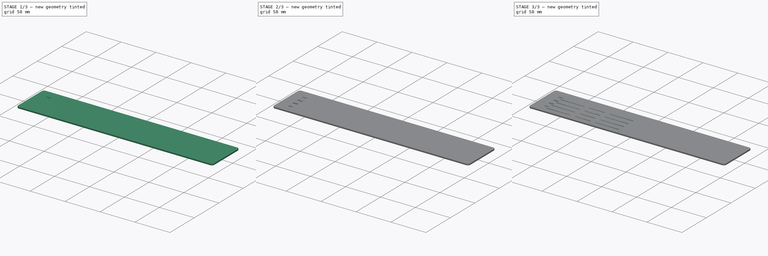
[diagram: build sequence overview — one tinted view per stage of 3, left to right]
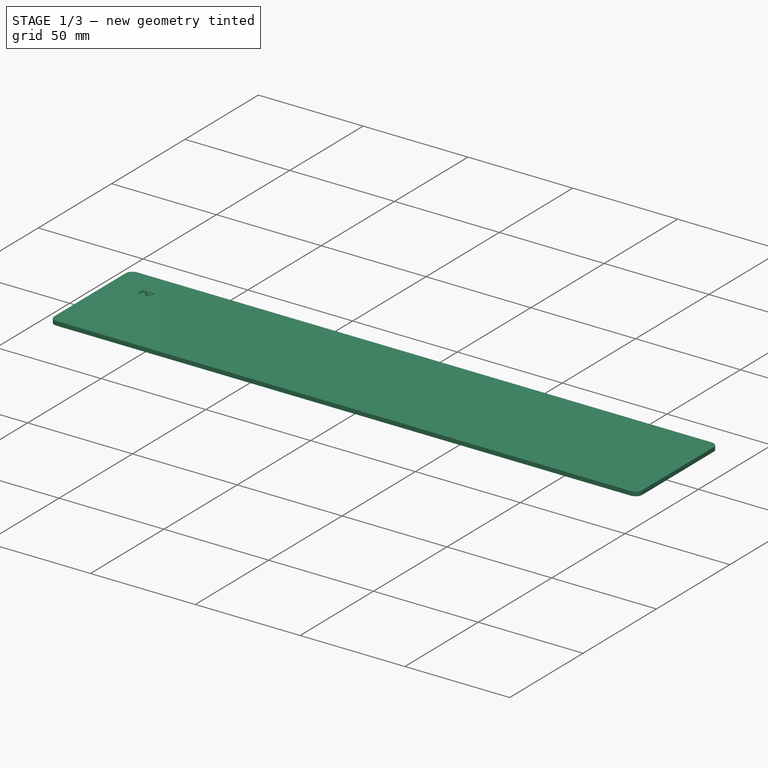
[diagram: stage 1 of 3 — iso view after this stage's code; geometry added in this stage tinted green]
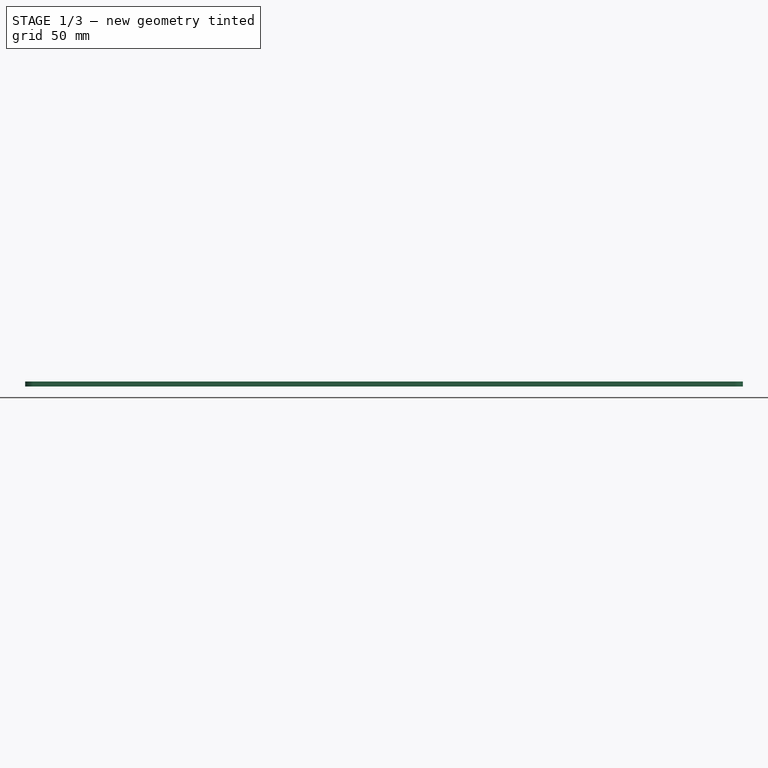
[diagram: stage 1 of 3 — front view after this stage's code; geometry added in this stage tinted green]
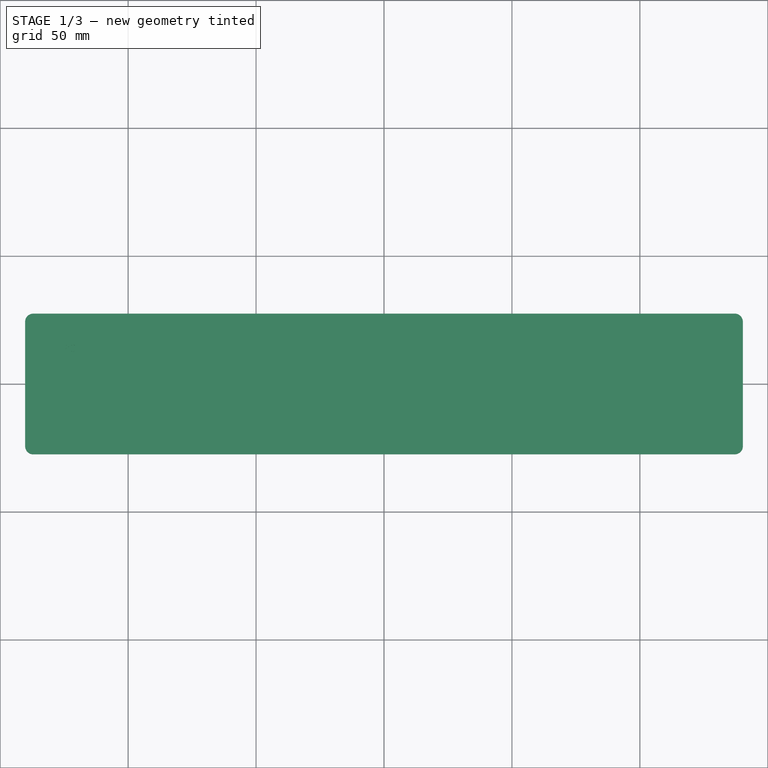
[diagram: stage 1 of 3 — top view after this stage's code; geometry added in this stage tinted green]
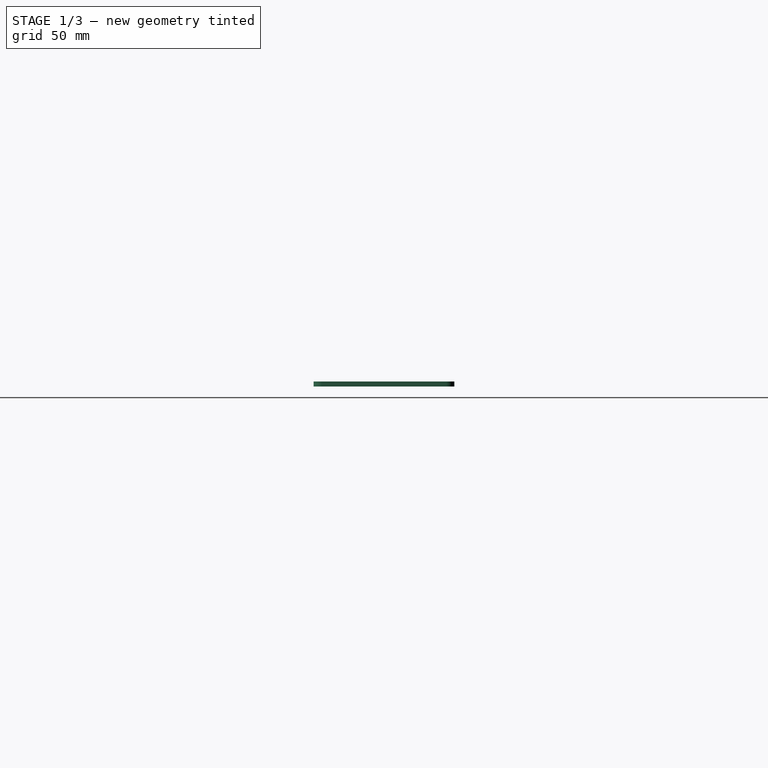
[diagram: stage 1 of 3 — right view after this stage's code; geometry added in this stage tinted green]
FCSTD DOCUMENT  (FreeCAD 0.21R33771 (Git))
Label: perspex window
License: All rights reserved
LicenseURL: http://en.wikipedia.org/wiki/All_rights_reserved
objects: Part::Part2DObjectPython×14, PartDesign::Pocket×5, Sketcher::SketchObject×2, PartDesign::Pad×1, PartDesign::LinearPattern×1, PartDesign::Body×1
note: 30 computed .brp shape members not serialized (recipe doc carries the construction recipe); baked Part::Feature solids carry a one-line shape summary decoded from their .brp

FEATURE [Sketcher::SketchObject] Sketch
  FullyConstrained = true
  MapMode = 5
  Support = -> [XY_Plane]
  sketch-geometry (10):
    g0: ArcOfCircle CenterX=-137.05 CenterY=24.3 CenterZ=0 NormalX=0 NormalY=0 NormalZ=1 AngleXU=0 Radius=3.2 StartAngle=1.5708 EndAngle=3.14159
    g1: LineSegment StartX=-137.05 StartY=27.5 StartZ=0 EndX=137.05 EndY=27.5 EndZ=0
    g2: ArcOfCircle CenterX=137.05 CenterY=24.3 CenterZ=0 NormalX=0 NormalY=0 NormalZ=1 AngleXU=0 Radius=3.2 StartAngle=5e-16 EndAngle=1.5708
    g3: LineSegment StartX=140.25 StartY=24.3 StartZ=0 EndX=140.25 EndY=-24.3 EndZ=0
    g4: ArcOfCircle CenterX=137.05 CenterY=-24.3 CenterZ=0 NormalX=0 NormalY=0 NormalZ=1 AngleXU=0 Radius=3.2 StartAngle=4.71239 EndAngle=6.28319
    g5: LineSegment StartX=137.05 StartY=-27.5 StartZ=0 EndX=-137.05 EndY=-27.5 EndZ=0
    g6: ArcOfCircle CenterX=-137.05 CenterY=-24.3 CenterZ=0 NormalX=0 NormalY=0 NormalZ=1 AngleXU=0 Radius=3.2 StartAngle=3.14159 EndAngle=4.71239
    g7: LineSegment StartX=-140.25 StartY=-24.3 StartZ=0 EndX=-140.25 EndY=24.3 EndZ=0
    g8: GeomPoint X=-140.25 Y=27.5 Z=0
    g9: GeomPoint X=140.25 Y=-27.5 Z=0
  constraints (23):
    c: Tangent(g0,g1) = 1.5708
    c: Tangent(g1,g2) = 1.5708
    c: Tangent(g2,g3) = 1.5708
    c: Tangent(g3,g4) = 1.5708
    c: Tangent(g4,g5) = 1.5708
    c: Tangent(g5,g6) = 1.5708
    c: Tangent(g6,g7) = 1.5708
    c: Tangent(g7,g0) = 1.5708
    c: Horizontal(g1)
    c: Horizontal(g5)
    c: Vertical(g3)
    c: Vertical(g7)
    c: Equal(g0,g2)
    c: Equal(g2,g4)
    c: Equal(g4,g6)
    c: PointOnObject(g8,g1)
    c: PointOnObject(g8,g7)
    c: PointOnObject(g9,g3)
    c: PointOnObject(g9,g5)
    c: Radius(g0) = 3.2
    c: Symmetric(g2,g6,g-1)
    c: DistanceX(g0,g2) = 280.5
    c: DistanceY(g4,g1) = 55
FEATURE [PartDesign::Pad] Pad
  Direction = (0,0,1)
  Length = 2
  Length2 = 10
  Profile = -> Sketch
  ReferenceAxis = -> Sketch [N_Axis]
  Type = 0
FEATURE [Part::Part2DObjectPython] ShapeString  # Draft 2D object (typed FeaturePython)
  FontFile = <userpath>/Downloads/roboto/Roboto-Black.ttf
  MakeFace = true
  Placement = pos=(-126,12,2) rot=(0,0,1;0rad)
  Size = 4
  String = PC
  Tracking = 0
FEATURE [PartDesign::Pocket] Pocket  label="PC"
  BaseFeature = -> Pad
  Direction = (0,0,-1)
  Length = 1
  Length2 = 5
  Profile = -> ShapeString
  ReferenceAxis = -> ShapeString [N_Axis]
  Type = 0
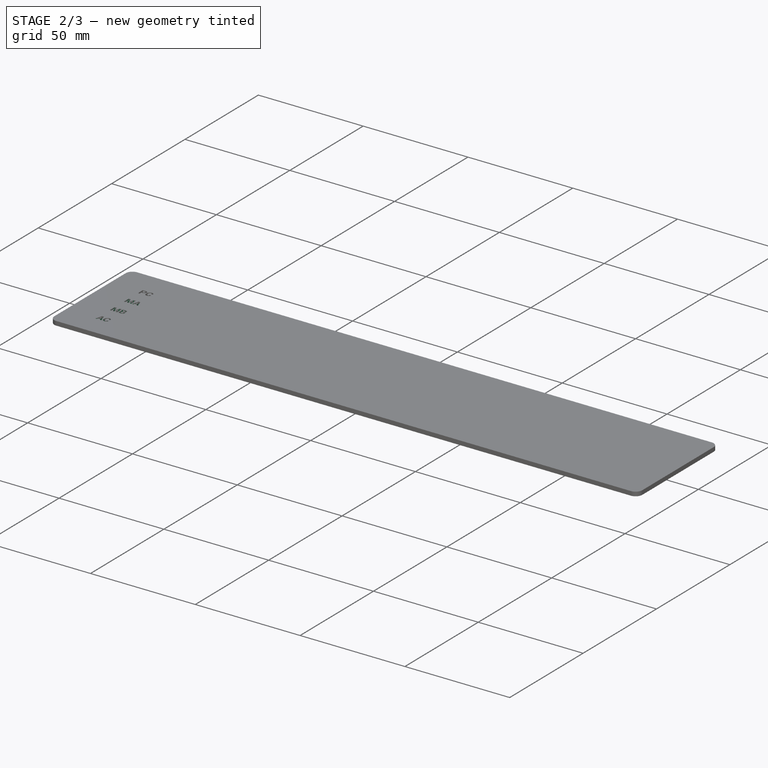
[diagram: stage 2 of 3 — iso view after this stage's code; geometry added in this stage tinted green]
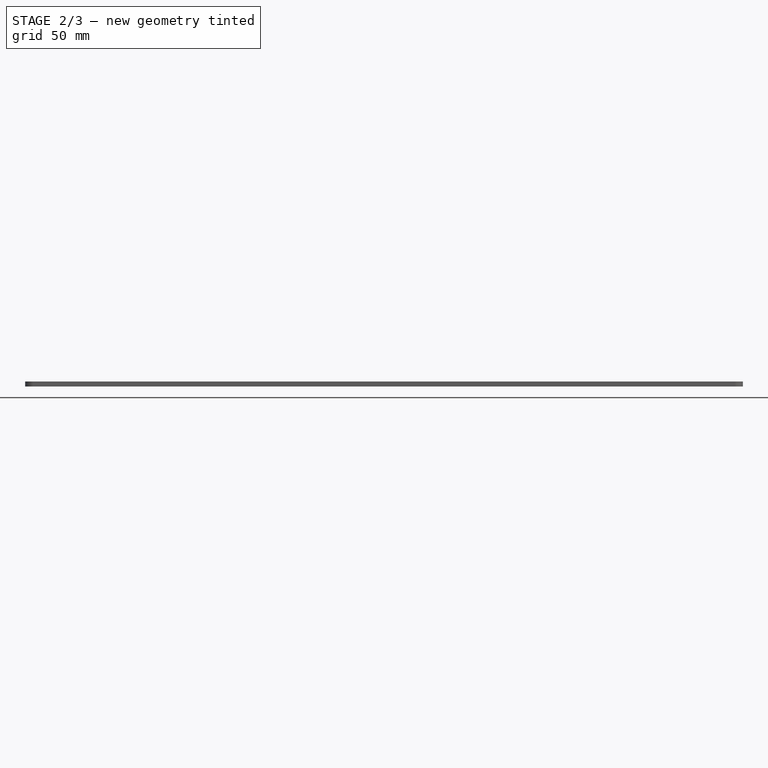
[diagram: stage 2 of 3 — front view after this stage's code; geometry added in this stage tinted green]
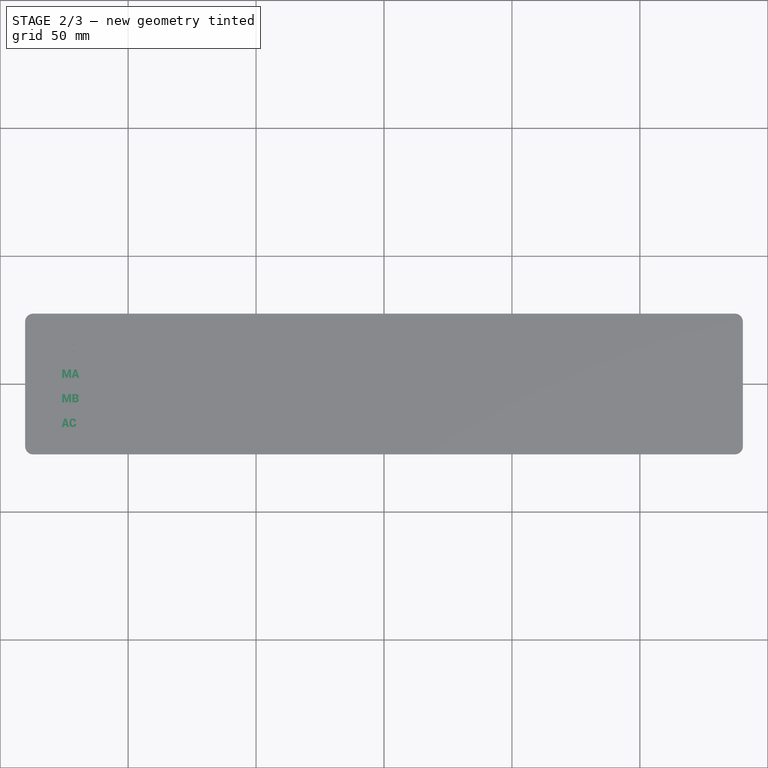
[diagram: stage 2 of 3 — top view after this stage's code; geometry added in this stage tinted green]
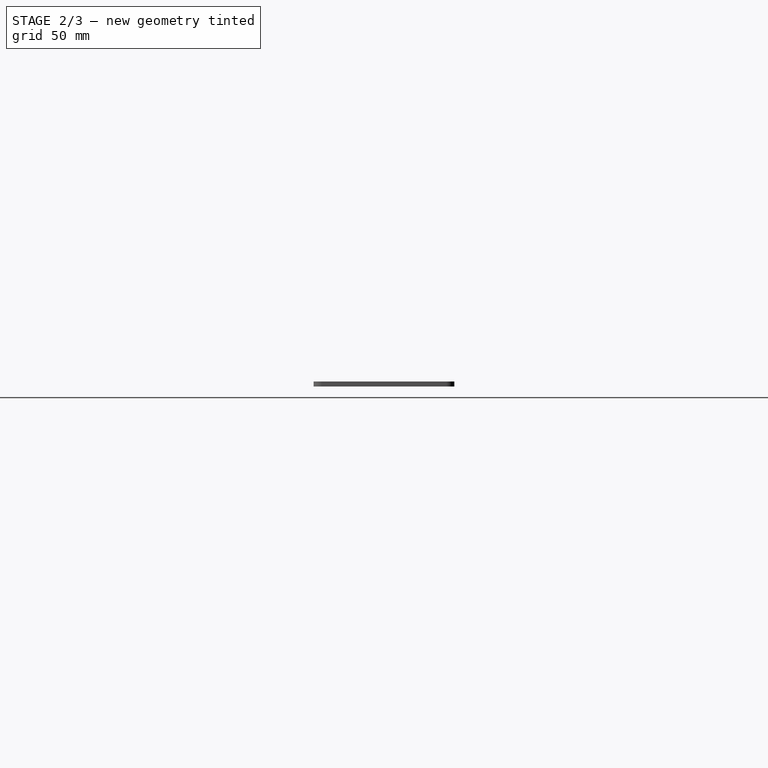
[diagram: stage 2 of 3 — right view after this stage's code; geometry added in this stage tinted green]
FEATURE [Part::Part2DObjectPython] ShapeString001  # Draft 2D object (typed FeaturePython)
  FontFile = <userpath>/Downloads/roboto/Roboto-Black.ttf
  MakeFace = true
  Placement = pos=(-126,2.4,2) rot=(0,0,1;0rad)
  Size = 4
  String = MA
  Tracking = 0
FEATURE [Part::Part2DObjectPython] ShapeString002  # Draft 2D object (typed FeaturePython)
  FontFile = <userpath>/Downloads/roboto/Roboto-Black.ttf
  MakeFace = true
  Placement = pos=(-126,-7.2,2) rot=(0,0,1;0rad)
  Size = 4
  String = MB
  Tracking = 0
FEATURE [Part::Part2DObjectPython] ShapeString003  # Draft 2D object (typed FeaturePython)
  FontFile = <userpath>/Downloads/roboto/Roboto-Black.ttf
  MakeFace = true
  Placement = pos=(-126,-16.8,2) rot=(0,0,1;0rad)
  Size = 4
  String = AC
  Tracking = 0
FEATURE [PartDesign::Pocket] Pocket001  label="MA"
  BaseFeature = -> Pocket
  Direction = (0,0,-1)
  Length = 1
  Length2 = 5
  Profile = -> ShapeString001
  ReferenceAxis = -> ShapeString001 [N_Axis]
  Type = 0
FEATURE [PartDesign::Pocket] Pocket002  label="MB"
  BaseFeature = -> Pocket001
  Direction = (0,0,-1)
  Length = 1
  Length2 = 5
  Profile = -> ShapeString002
  ReferenceAxis = -> ShapeString002 [N_Axis]
  Type = 0
FEATURE [PartDesign::Pocket] Pocket003  label="AC"
  BaseFeature = -> Pocket002
  Direction = (0,0,-1)
  Length = 1
  Length2 = 5
  Profile = -> ShapeString003
  ReferenceAxis = -> ShapeString003 [N_Axis]
  Type = 0
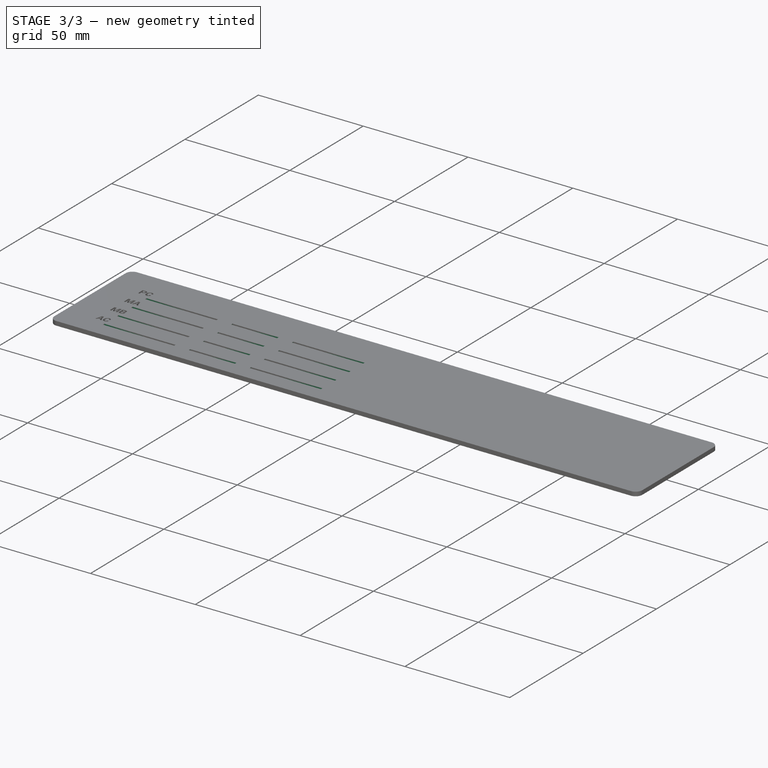
[diagram: stage 3 of 3 — iso view after this stage's code; geometry added in this stage tinted green]
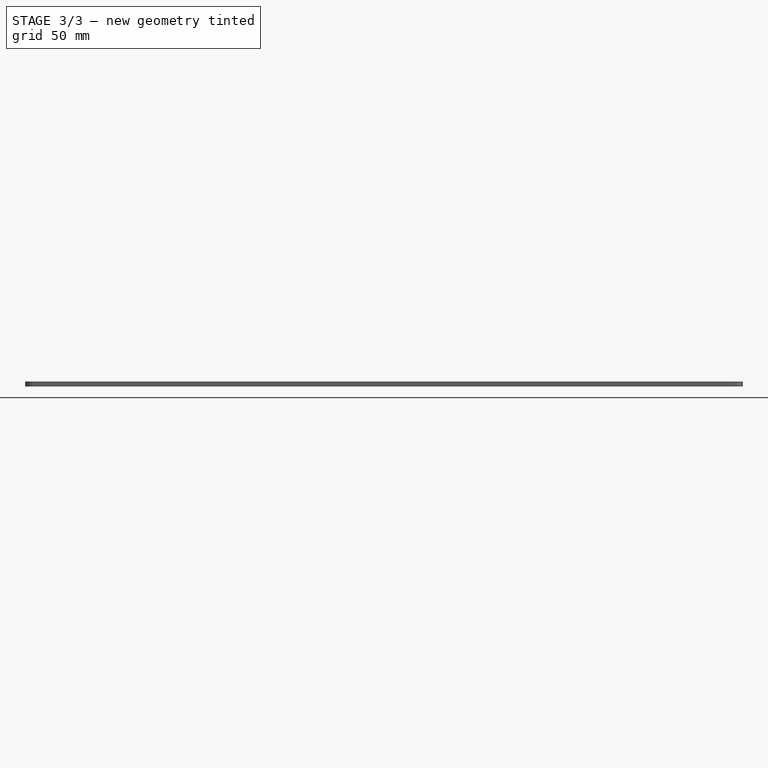
[diagram: stage 3 of 3 — front view after this stage's code; geometry added in this stage tinted green]
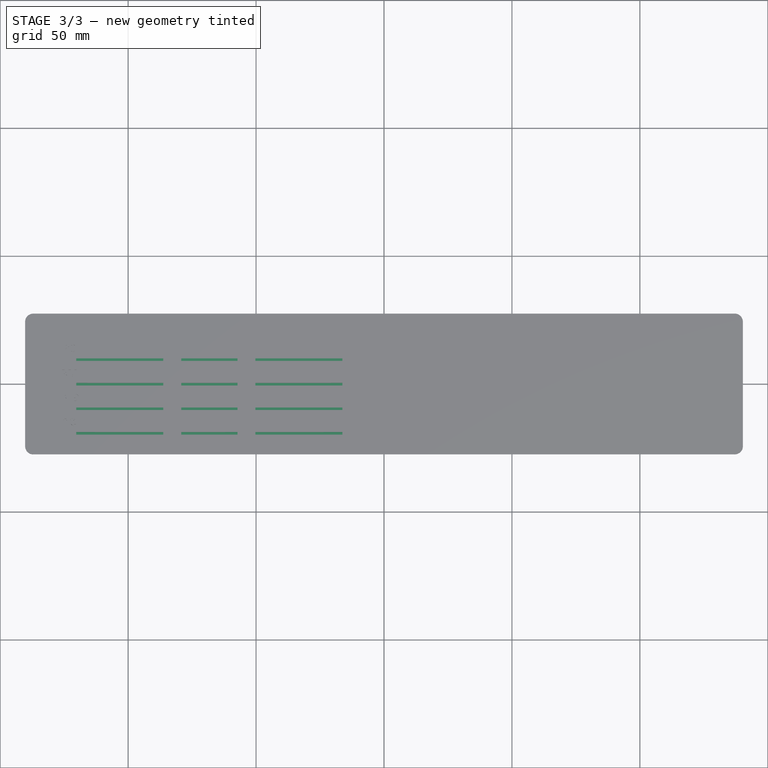
[diagram: stage 3 of 3 — top view after this stage's code; geometry added in this stage tinted green]
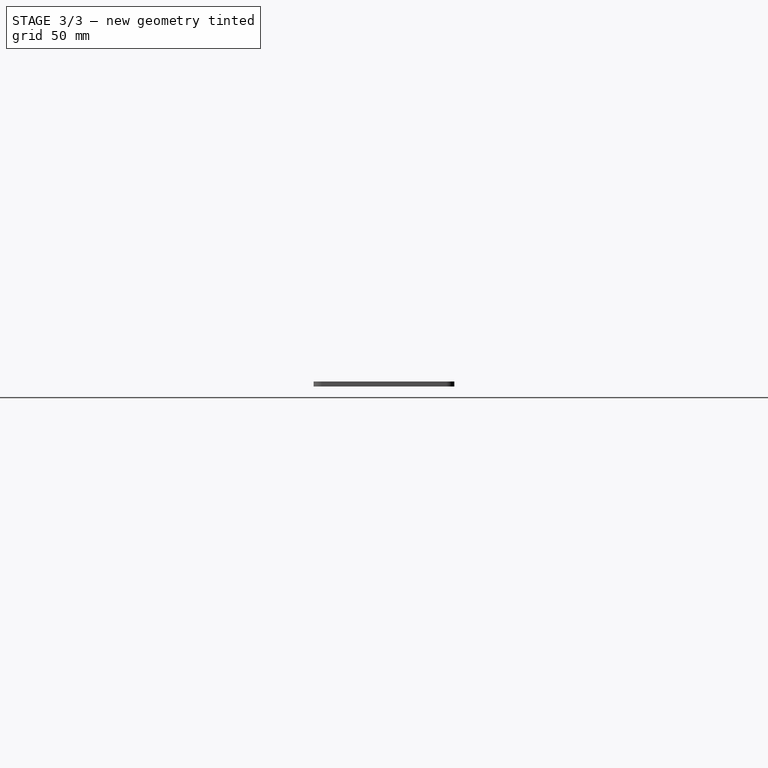
[diagram: stage 3 of 3 — right view after this stage's code; geometry added in this stage tinted green]
FEATURE [Sketcher::SketchObject] Sketch001
  FullyConstrained = true
  MapMode = 5
  Placement = pos=(0,0,2) rot=(0,0,1;0rad)
  Support = -> [Pocket003]
  sketch-geometry (12):
    g0: LineSegment StartX=-120.25 StartY=9 StartZ=0 EndX=-86.25 EndY=9 EndZ=0
    g1: LineSegment StartX=-86.25 StartY=9 StartZ=0 EndX=-86.25 EndY=10 EndZ=0
    g2: LineSegment StartX=-86.25 StartY=10 StartZ=0 EndX=-120.25 EndY=10 EndZ=0
    g3: LineSegment StartX=-120.25 StartY=10 StartZ=0 EndX=-120.25 EndY=9 EndZ=0
    g4: LineSegment StartX=-79.25 StartY=10 StartZ=0 EndX=-57.25 EndY=10 EndZ=0
    g5: LineSegment StartX=-57.25 StartY=10 StartZ=0 EndX=-57.25 EndY=9 EndZ=0
    g6: LineSegment StartX=-57.25 StartY=9 StartZ=0 EndX=-79.25 EndY=9 EndZ=0
    g7: LineSegment StartX=-79.25 StartY=9 StartZ=0 EndX=-79.25 EndY=10 EndZ=0
    g8: LineSegment StartX=-50.25 StartY=10 StartZ=0 EndX=-16.25 EndY=10 EndZ=0
    g9: LineSegment StartX=-16.25 StartY=10 StartZ=0 EndX=-16.25 EndY=9 EndZ=0
    g10: LineSegment StartX=-16.25 StartY=9 StartZ=0 EndX=-50.25 EndY=9 EndZ=0
    g11: LineSegment StartX=-50.25 StartY=9 StartZ=0 EndX=-50.25 EndY=10 EndZ=0
  constraints (36):
    c: Coincident(g0,g1)
    c: Coincident(g1,g2)
    c: Coincident(g2,g3)
    c: Coincident(g3,g0)
    c: Horizontal(g0)
    c: Horizontal(g2)
    c: Vertical(g1)
    c: Vertical(g3)
    c: DistanceY(g-1,g0) = 9
    c: DistanceY(g3,g3) = 1
    c: DistanceX(g2,g2) = 34
    c: DistanceX(g0,g-1) = 120.25
    c: Coincident(g4,g5)
    c: Coincident(g5,g6)
    c: Coincident(g6,g7)
    c: Coincident(g7,g4)
    c: Horizontal(g4)
    c: Horizontal(g6)
    c: Vertical(g5)
    c: Vertical(g7)
    c: Coincident(g8,g9)
    c: Coincident(g9,g10)
    c: Coincident(g10,g11)
    c: Coincident(g11,g8)
    c: Horizontal(g8)
    c: Horizontal(g10)
    c: Vertical(g9)
    c: Vertical(g11)
    c: Horizontal(g0,g6)
    c: Horizontal(g6,g10)
    c: Horizontal(g4,g1)
    c: Horizontal(g1,g8)
    c: Equal(g8,g2)
    c: DistanceX(g0,g9) = 104
    c: DistanceX(g4,g4) = 22
    c: DistanceX(g1,g4) = 7
FEATURE [PartDesign::Pocket] Pocket004  label="LED Underlines"
  BaseFeature = -> Pocket003
  Direction = (0,0,-1)
  Length = 1
  Length2 = 5
  Profile = -> Sketch001
  ReferenceAxis = -> Sketch001 [N_Axis]
  Type = 0
FEATURE [PartDesign::LinearPattern] LinearPattern
  BaseFeature = -> Pocket004
  Direction = -> Sketch001 [V_Axis]
  Length = 28.8
  Occurrences = 4
  Originals = -> [Pocket004]
  Reversed = true
FEATURE [PartDesign::Body] Body
  Group = -> [Sketch,Pad,ShapeString,Pocket,ShapeString001,ShapeString002,ShapeString003,Pocket001,Pocket002,Pocket003,Sketch001,Pocket004,LinearPattern]
  Origin = -> Origin
  Tip = -> LinearPattern
FEATURE [Part::Part2DObjectPython] ShapeString004  label="AND"  # Draft 2D object (typed FeaturePython)
  FontFile = <userpath>/Downloads/roboto/Roboto-Black.ttf
  MakeFace = true
  Placement = pos=(16,12,0) rot=(0,0,1;0rad)
  Size = 4
  String = AND
  Tracking = 0
FEATURE [Part::Part2DObjectPython] ShapeString005  label="TAD"  # Draft 2D object (typed FeaturePython)
  FontFile = <userpath>/Downloads/roboto/Roboto-Black.ttf
  MakeFace = true
  Placement = pos=(16,2.4,2) rot=(0,0,1;0rad)
  Size = 4
  String = TAD
  Tracking = 0
FEATURE [Part::Part2DObjectPython] ShapeString006  label="ISZ"  # Draft 2D object (typed FeaturePython)
  FontFile = <userpath>/Downloads/roboto/Roboto-Black.ttf
  MakeFace = true
  Placement = pos=(17,-7.2,2) rot=(0,0,1;0rad)
  Size = 4
  String = ISZ
  Tracking = 0
FEATURE [Part::Part2DObjectPython] ShapeString007  label="DCA"  # Draft 2D object (typed FeaturePython)
  FontFile = <userpath>/Downloads/roboto/Roboto-Black.ttf
  MakeFace = true
  Placement = pos=(16,-16.8,2) rot=(0,0,1;0rad)
  Size = 4
  String = DCA
  Tracking = 0
FEATURE [Part::Part2DObjectPython] ShapeString008  label="OPR"  # Draft 2D object (typed FeaturePython)
  FontFile = <userpath>/Downloads/roboto/Roboto-Black.ttf
  MakeFace = true
  Placement = pos=(29.8,12,2) rot=(0,0,1;0rad)
  Size = 4
  String = OPR
  Tracking = 0
FEATURE [Part::Part2DObjectPython] ShapeString009  label="IOT"  # Draft 2D object (typed FeaturePython)
  FontFile = <userpath>/Downloads/roboto/Roboto-Black.ttf
  MakeFace = true
  Placement = pos=(31.3,2.4,2) rot=(0,0,1;0rad)
  Size = 4
  String = IOT
  Tracking = 0
FEATURE [Part::Part2DObjectPython] ShapeString010  label="JMP"  # Draft 2D object (typed FeaturePython)
  FontFile = <userpath>/Downloads/roboto/Roboto-Black.ttf
  MakeFace = true
  Placement = pos=(29.8,-7.2,2) rot=(0,0,1;0rad)
  Size = 4
  String = JMP
  Tracking = 0
FEATURE [Part::Part2DObjectPython] ShapeString011  label="JMS"  # Draft 2D object (typed FeaturePython)
  FontFile = <userpath>/Downloads/roboto/Roboto-Black.ttf
  MakeFace = true
  Placement = pos=(29.8,-16.8,2) rot=(0,0,1;0rad)
  Size = 4
  String = JMS
  Tracking = 0
FEATURE [Part::Part2DObjectPython] ShapeString012  label="RUN"  # Draft 2D object (typed FeaturePython)
  FontFile = <userpath>/Downloads/roboto/Roboto-Black.ttf
  MakeFace = true
  Placement = pos=(99.3,12,2) rot=(0,0,1;0rad)
  Size = 4
  String = RUN
  Tracking = 0
FEATURE [Part::Part2DObjectPython] ShapeString013  # Draft 2D object (typed FeaturePython)
  FontFile = <userpath>/Downloads/roboto/Roboto-Black.ttf
  MakeFace = true
  Placement = pos=(97.3,2.4,2) rot=(0,0,1;0rad)
  Size = 4
  String = FETCH
  Tracking = 0
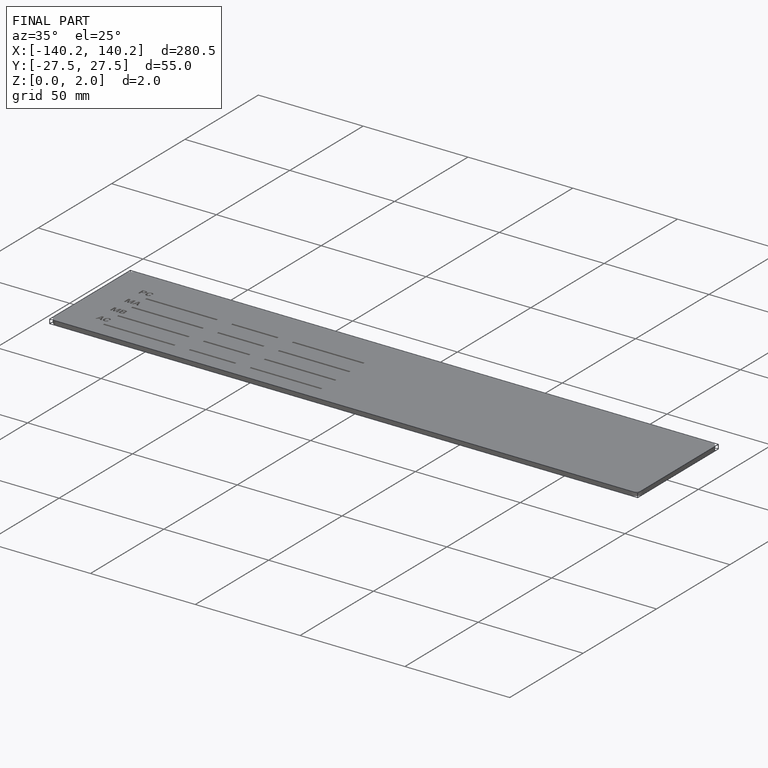
[diagram: finished part — iso view with bounding-box wireframe]
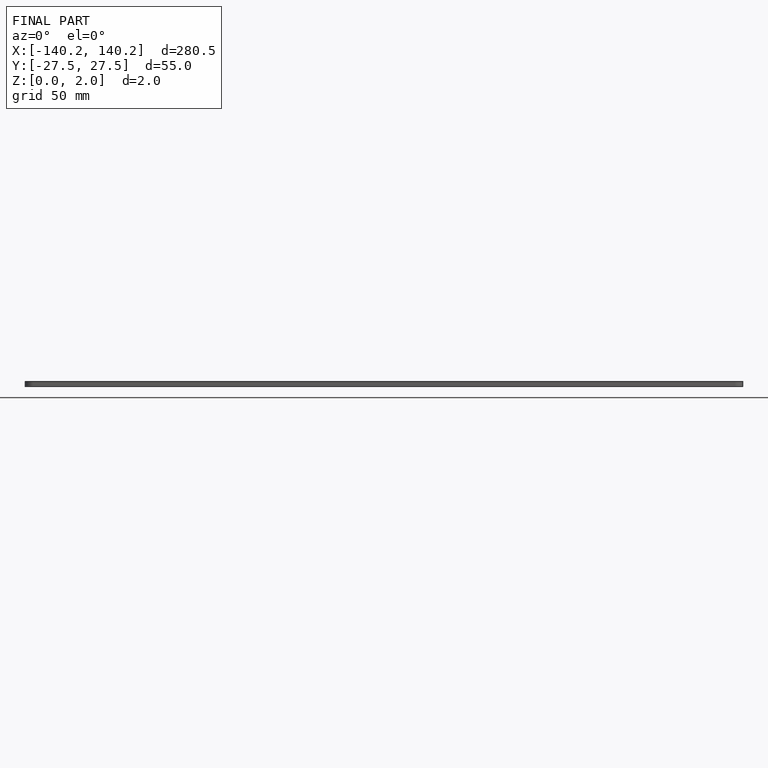
[diagram: finished part — front view with bounding-box wireframe]
